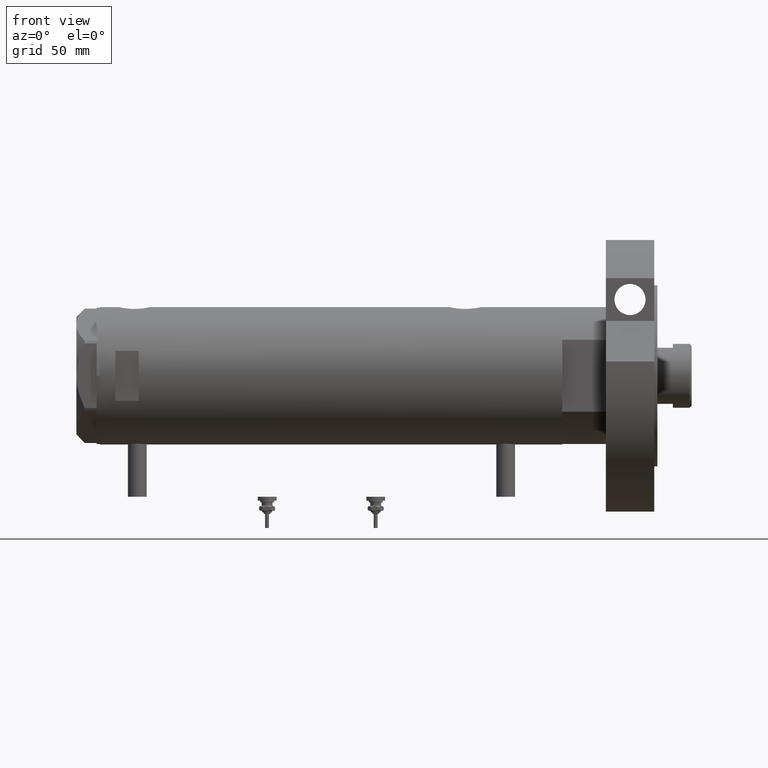
[diagram: clean part render]
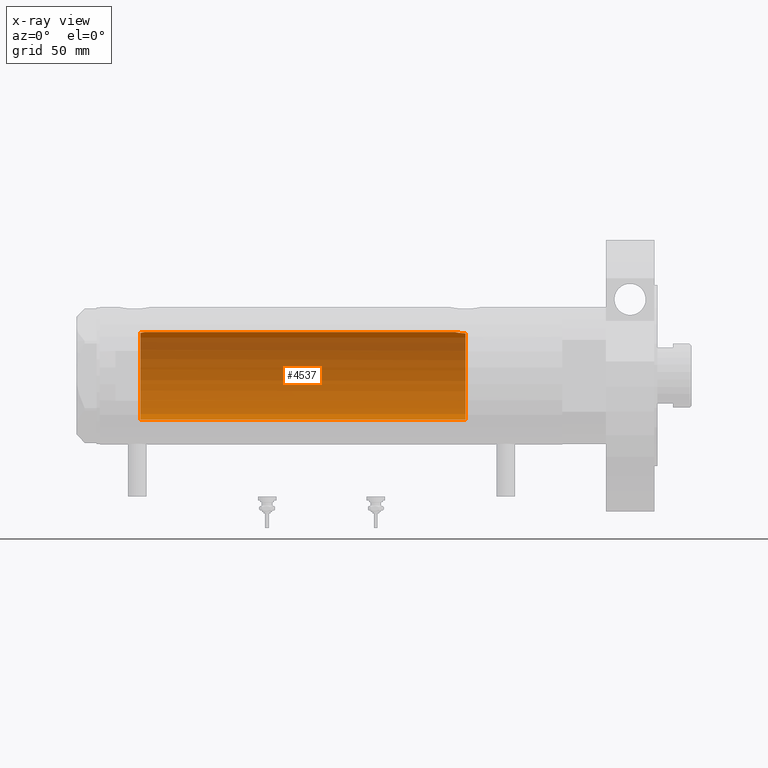
[diagram: x-ray — body ghosted, one internal face saturated and labeled with its STEP entity id]
A machine part, front view, then the same camera in x-ray: the body is ghosted and one INTERNAL B-rep face — a face not visible from any outside direction — is saturated and labeled: STEP entity #4537.
In plain terms, the highlighted cylindrical surface (partial cylindrical patch) has radius 28 mm, axis along (1, 0, -0).
Its self-contained STEP definition (entity closure, byte-faithful):
#12 = CARTESIAN_POINT ( 'NONE',  ( 27.46622653369042766, 5.441176343402222670, 122.2000000000000028 ) ) ;
#16 = EDGE_LOOP ( 'NONE', ( #2059, #144, #3064, #5741, #4839, #733 ) ) ;
#110 = CARTESIAN_POINT ( 'NONE',  ( 27.94984428957576483, 1.729919005741095805, -79.73624844305086867 ) ) ;
#144 = ORIENTED_EDGE ( 'NONE', *, *, #1597, .F. ) ;
#313 = CARTESIAN_POINT ( 'NONE',  ( 27.59012538417911031, 4.776664836238034617, 121.3667529856984544 ) ) ;
#479 = EDGE_CURVE ( 'NONE', #4321, #3611, #6380, .T. ) ;
#733 = ORIENTED_EDGE ( 'NONE', *, *, #2574, .F. ) ;
#798 = CIRCLE ( 'NONE', #2623, 28.00000000000000000 ) ;
#879 = CARTESIAN_POINT ( 'NONE',  ( 27.77752716845532532, 3.554080867558345957, 120.3370280902186238 ) ) ;
#941 = CARTESIAN_POINT ( 'NONE',  ( 27.40633791352276205, 5.740289853568793177, -82.85469713442370221 ) ) ;
#960 = DIRECTION ( 'NONE',  ( -1.000000000000000000, 0.000000000000000000, 0.000000000000000000 ) ) ;
#1014 = AXIS2_PLACEMENT_3D ( 'NONE', #2613, #4923, #1295 ) ;
#1264 = CYLINDRICAL_SURFACE ( 'NONE', #2972, 28.00000000000000000 ) ;
#1295 = DIRECTION ( 'NONE',  ( -1.000000000000000000, 0.000000000000000000, 0.000000000000000000 ) ) ;
#1453 = CARTESIAN_POINT ( 'NONE',  ( 27.62184089756353345, 4.590621453796798868, 121.1784729639471863 ) ) ;
#1461 = EDGE_CURVE ( 'NONE', #5848, #5242, #4290, .T. ) ;
#1463 = CARTESIAN_POINT ( 'NONE',  ( 28.00000000000000000, 0.000000000000000000, 119.3200000000000074 ) ) ;
#1502 = LINE ( 'NONE', #6091, #4646 ) ;
#1552 = CARTESIAN_POINT ( 'NONE',  ( 27.23306259439847921, 6.508606919525676382, -85.10931986330979271 ) ) ;
#1583 = CARTESIAN_POINT ( 'NONE',  ( 27.65669575048418238, 4.382057994727794004, -81.17233761202035680 ) ) ;
#1597 = EDGE_CURVE ( 'NONE', #7543, #4321, #2169, .T. ) ;
#1836 = FACE_OUTER_BOUND ( 'NONE', #16, .T. ) ;
#1852 = CARTESIAN_POINT ( 'NONE',  ( 27.92057377942992957, 2.145335874642060769, -79.86449057456586331 ) ) ;
#1939 = CARTESIAN_POINT ( 'NONE',  ( 27.52730847012277948, 5.126288527110434146, 121.7662339946191281 ) ) ;
#2001 = CARTESIAN_POINT ( 'NONE',  ( 28.00000000000000000, 0.4344375524774752306, -79.51999999999999602 ) ) ;
#2059 = ORIENTED_EDGE ( 'NONE', *, *, #479, .F. ) ;
#2060 = CARTESIAN_POINT ( 'NONE',  ( 28.00000000000000000, 0.000000000000000000, 119.3200000000000074 ) ) ;
#2078 = CARTESIAN_POINT ( 'NONE',  ( 27.22604017942137133, 6.537820648187913086, -85.32472952793342813 ) ) ;
#2169 = B_SPLINE_CURVE_WITH_KNOTS ( 'NONE', 3,
 ( #4340, #6696, #1939, #313, #1453, #6116, #879, #3192, #5531, #2632, #4787, #4943, #7322, #2060 ),
 .UNSPECIFIED., .F., .F.,
 ( 4, 2, 2, 2, 2, 2, 4 ),
 ( 0.03488855882532452407, 0.03568791961119571754, 0.03648728039706691101, 0.03808600196880932570, 0.03888536275468051917, 0.03968472354055171958, 0.04128344511229410652 ),
 .UNSPECIFIED. ) ;
#2574 = EDGE_CURVE ( 'NONE', #3611, #5242, #5726, .T. ) ;
#2613 = CARTESIAN_POINT ( 'NONE',  ( 0.000000000000000000, 0.000000000000000000, -86.20000000000000284 ) ) ;
#2623 = AXIS2_PLACEMENT_3D ( 'NONE', #2624, #3111, #3767 ) ;
#2624 = CARTESIAN_POINT ( 'NONE',  ( 0.000000000000000000, 0.000000000000000000, 122.2000000000000028 ) ) ;
#2632 = CARTESIAN_POINT ( 'NONE',  ( 27.92131942247210219, 2.112374604004422007, 119.6625997420270977 ) ) ;
#2690 = CARTESIAN_POINT ( 'NONE',  ( 27.55311958554909069, 4.984468698502469763, -81.79897075987406652 ) ) ;
#2972 = AXIS2_PLACEMENT_3D ( 'NONE', #3587, #3774, #960 ) ;
#2988 = CARTESIAN_POINT ( 'NONE',  ( 28.00000000000000000, 8.058211040172173087E-16, -79.52000000000001023 ) ) ;
#3064 = ORIENTED_EDGE ( 'NONE', *, *, #4953, .T. ) ;
#3072 = EDGE_CURVE ( 'NONE', #3695, #5848, #1502, .T. ) ;
#3111 = DIRECTION ( 'NONE',  ( 0.000000000000000000, 0.000000000000000000, 1.000000000000000000 ) ) ;
#3192 = CARTESIAN_POINT ( 'NONE',  ( 27.85549123290575935, 2.850830541327390666, 119.9637046868290611 ) ) ;
#3256 = CARTESIAN_POINT ( 'NONE',  ( 27.21525044627864176, 6.582564457995945695, -85.98128103916469911 ) ) ;
#3587 = CARTESIAN_POINT ( 'NONE',  ( 0.000000000000000000, 0.000000000000000000, 148.1999999999999886 ) ) ;
#3605 = CARTESIAN_POINT ( 'NONE',  ( 27.84585502960274539, 2.940342086136629618, -80.20946914370765057 ) ) ;
#3607 = CARTESIAN_POINT ( 'NONE',  ( -28.00000000000000000, 0.000000000000000000, 122.2000000000000028 ) ) ;
#3611 = VERTEX_POINT ( 'NONE', #6637 ) ;
#3695 = VERTEX_POINT ( 'NONE', #3607 ) ;
#3746 = DIRECTION ( 'NONE',  ( -0.000000000000000000, -0.000000000000000000, -1.000000000000000000 ) ) ;
#3767 = DIRECTION ( 'NONE',  ( 1.000000000000000000, 0.000000000000000000, 0.000000000000000000 ) ) ;
#3774 = DIRECTION ( 'NONE',  ( -0.000000000000000000, -0.000000000000000000, -1.000000000000000000 ) ) ;
#3792 = CARTESIAN_POINT ( 'NONE',  ( 27.47751794615730248, 5.385218554237045652, -82.31285718566402920 ) ) ;
#3879 = CARTESIAN_POINT ( 'NONE',  ( 27.26132124301008730, 6.389601967157238604, -84.46983701249828869 ) ) ;
#3910 = CARTESIAN_POINT ( 'NONE',  ( 27.36295003163000672, 5.941130795499228512, -83.23794896005176724 ) ) ;
#4003 = DIRECTION ( 'NONE',  ( -0.000000000000000000, -0.000000000000000000, -1.000000000000000000 ) ) ;
#4290 = CIRCLE ( 'NONE', #1014, 28.00000000000000000 ) ;
#4319 = CARTESIAN_POINT ( 'NONE',  ( 27.98989376185446432, 0.8673308354119230179, -79.56259295538819742 ) ) ;
#4321 = VERTEX_POINT ( 'NONE', #1463 ) ;
#4340 = CARTESIAN_POINT ( 'NONE',  ( 27.46622653369042766, 5.441176343402222670, 122.2000000000000028 ) ) ;
#4432 = CARTESIAN_POINT ( 'NONE',  ( 27.57921322802619457, 4.838471943606464265, -81.63541026849053139 ) ) ;
#4503 = CARTESIAN_POINT ( 'NONE',  ( 27.21712162367727927, 6.574850051620751756, -85.76016190408793705 ) ) ;
#4537 = ADVANCED_FACE ( 'NONE', ( #1836 ), #1264, .F. ) ;
#4646 = VECTOR ( 'NONE', #3746, 1000.000000000000000 ) ;
#4771 = CARTESIAN_POINT ( 'NONE',  ( 27.80267334785859390, 3.323944738624906581, -80.41709962017577595 ) ) ;
#4787 = CARTESIAN_POINT ( 'NONE',  ( 27.93969014165222120, 1.855286977351521038, 119.5812411240566462 ) ) ;
#4839 = ORIENTED_EDGE ( 'NONE', *, *, #1461, .T. ) ;
#4923 = DIRECTION ( 'NONE',  ( 0.000000000000000000, 0.000000000000000000, -1.000000000000000000 ) ) ;
#4943 = CARTESIAN_POINT ( 'NONE',  ( 27.98435453724556510, 1.072101232728050801, 119.3856609737169094 ) ) ;
#4953 = EDGE_CURVE ( 'NONE', #7543, #3695, #798, .T. ) ;
#4964 = CARTESIAN_POINT ( 'NONE',  ( 27.70785054350542609, 4.050475470458774652, -80.89631279652928697 ) ) ;
#5035 = CARTESIAN_POINT ( 'NONE',  ( 27.50226589723265747, 5.257822516958271741, -82.13779315141979964 ) ) ;
#5242 = VERTEX_POINT ( 'NONE', #5475 ) ;
#5372 = VECTOR ( 'NONE', #4003, 1000.000000000000000 ) ;
#5475 = CARTESIAN_POINT ( 'NONE',  ( 27.21605408577812568, 6.579240077698946365, -86.20000000000000284 ) ) ;
#5531 = CARTESIAN_POINT ( 'NONE',  ( 27.87926027245440963, 2.609415915507857342, 119.8536592036424508 ) ) ;
#5545 = CARTESIAN_POINT ( 'NONE',  ( -28.00000000000000000, 0.000000000000000000, -86.20000000000000284 ) ) ;
#5726 = B_SPLINE_CURVE_WITH_KNOTS ( 'NONE', 3,
 ( #2988, #2001, #4319, #110, #1852, #6524, #3605, #4771, #6215, #4964, #1583, #4432, #2690, #5035, #3792, #941, #3910, #7304, #3879, #1552, #2078, #4503, #3256, #6100 ),
 .UNSPECIFIED., .F., .F.,
 ( 4, 2, 2, 2, 2, 2, 2, 2, 2, 2, 2, 4 ),
 ( 0.02064447638625020037, 0.02194711032043803953, 0.02324974425462587868, 0.02390106122171980693, 0.02455237818881373518, 0.02585501212300159168, 0.02650632909009551647, 0.02715764605718944472, 0.02846027999137729775, 0.02976291392556515425, 0.03041423089265907903, 0.03106554785975300728 ),
 .UNSPECIFIED. ) ;
#5741 = ORIENTED_EDGE ( 'NONE', *, *, #3072, .T. ) ;
#5848 = VERTEX_POINT ( 'NONE', #5545 ) ;
#6091 = CARTESIAN_POINT ( 'NONE',  ( -28.00000000000000000, 0.000000000000000000, 148.1999999999999886 ) ) ;
#6100 = CARTESIAN_POINT ( 'NONE',  ( 27.21605408577812568, 6.579240077698946365, -86.20000000000000284 ) ) ;
#6116 = CARTESIAN_POINT ( 'NONE',  ( 27.71586615897684069, 3.998795151939223746, 120.6476739562574778 ) ) ;
#6215 = CARTESIAN_POINT ( 'NONE',  ( 27.77951318121830226, 3.511620812961476545, -80.53115835401439426 ) ) ;
#6380 = LINE ( 'NONE', #6921, #5372 ) ;
#6524 = CARTESIAN_POINT ( 'NONE',  ( 27.86588799758911250, 2.744542339393451158, -80.11578757899563641 ) ) ;
#6637 = CARTESIAN_POINT ( 'NONE',  ( 28.00000000000000000, 8.058211040172173087E-16, -79.52000000000001023 ) ) ;
#6696 = CARTESIAN_POINT ( 'NONE',  ( 27.49602064413224056, 5.290780227724648732, 121.9788292468204673 ) ) ;
#6921 = CARTESIAN_POINT ( 'NONE',  ( 28.00000000000000000, 3.429011037612589276E-15, 148.1999999999999886 ) ) ;
#7304 = CARTESIAN_POINT ( 'NONE',  ( 27.28989504668421162, 6.268149480003695651, -84.05093353430703473 ) ) ;
#7322 = CARTESIAN_POINT ( 'NONE',  ( 28.00000000000000000, 0.5407212781083797770, 119.3200000000000216 ) ) ;
#7543 = VERTEX_POINT ( 'NONE', #12 ) ;